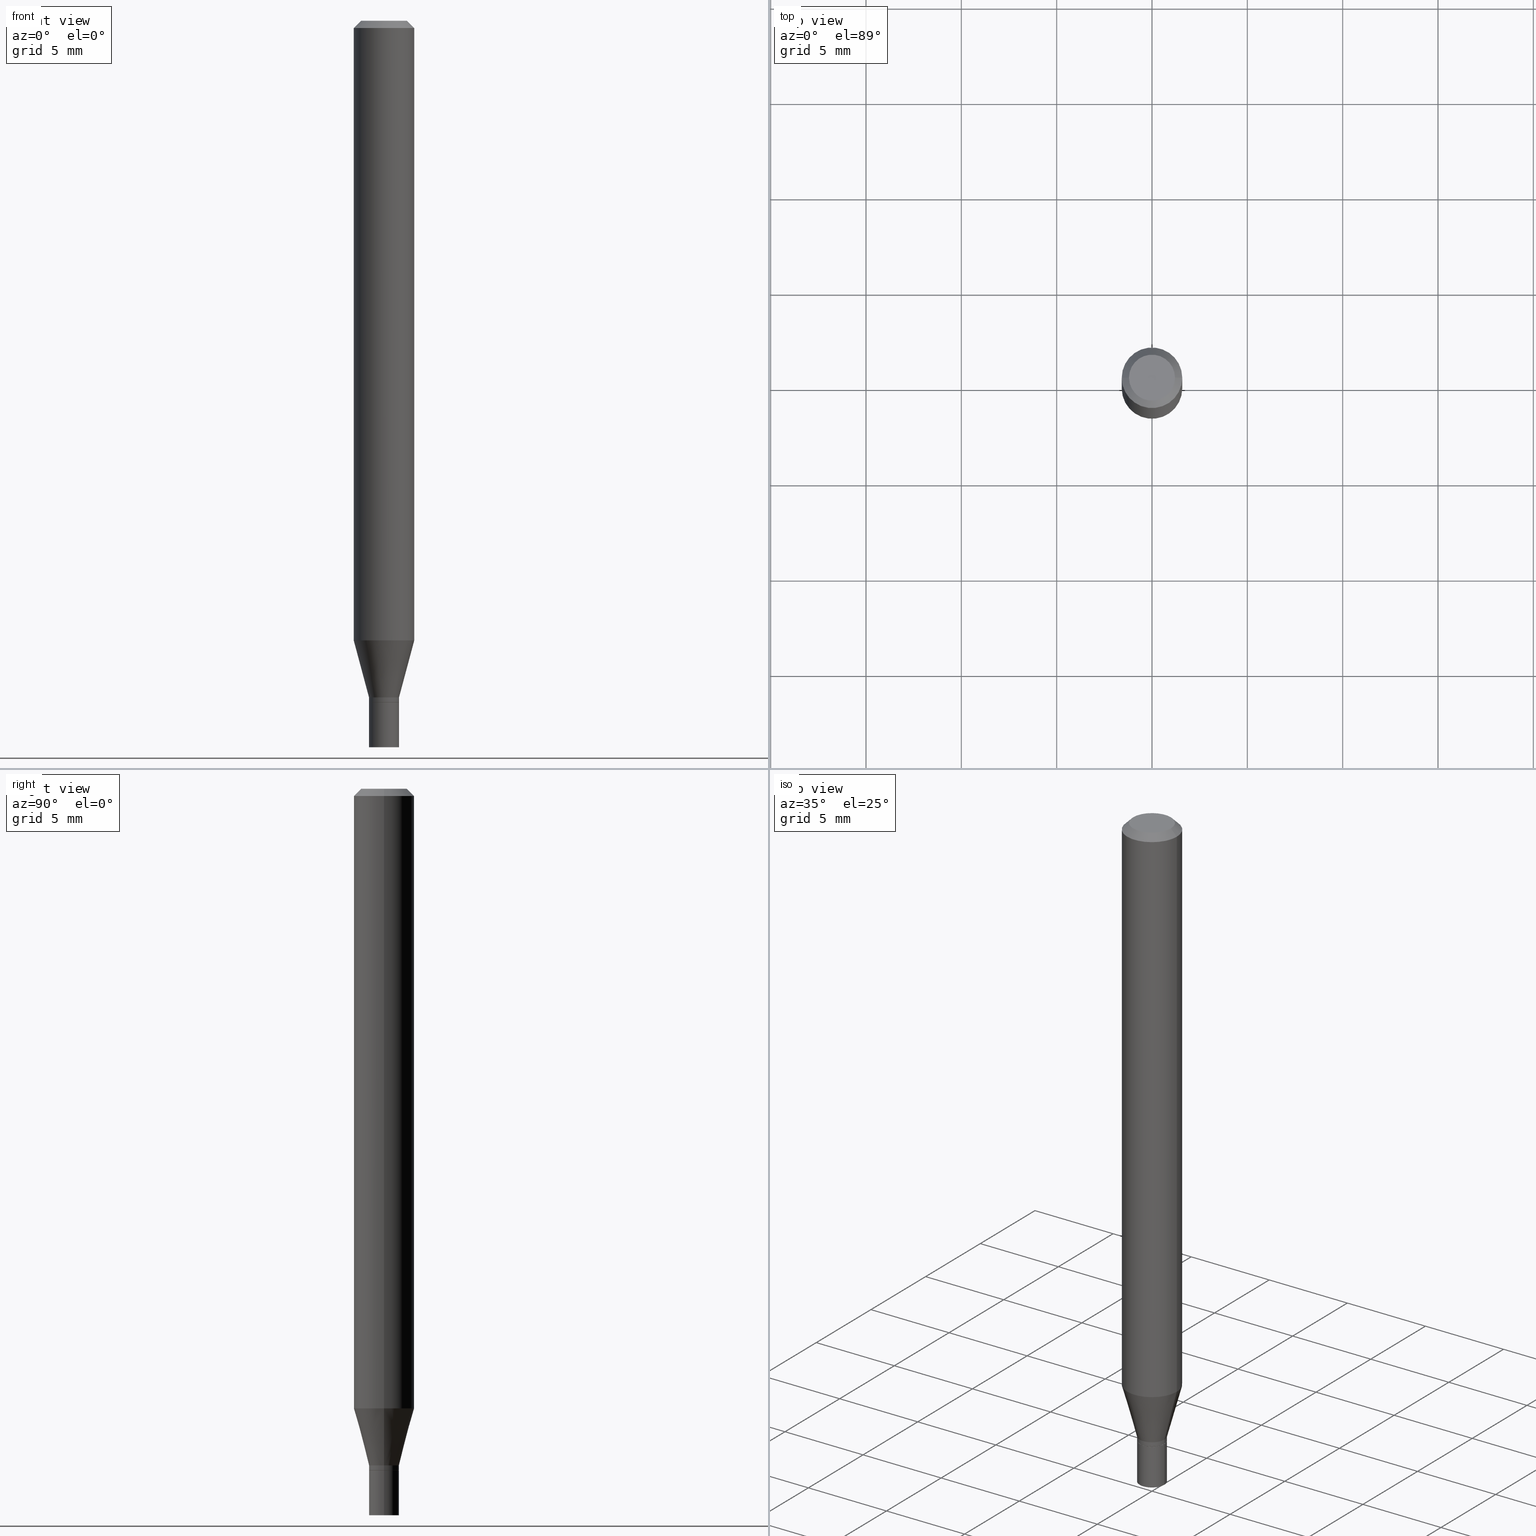
[diagram: canonical four-view strip — front | top / right | iso, engineering-drawing reading convention]
A machine part, canonical four-view strip (front | top / right | iso — engineering-drawing reading convention). The complete STEP part file that produces these views, byte-faithful:
ISO-10303-21;
HEADER;
FILE_DESCRIPTION (( 'STEP AP203' ),
    '1' );
FILE_NAME ('02388.STEP',
    '2024-03-18T20:21:01',
    ( '' ),
    ( '' ),
    'SwSTEP 2.0',
    'SolidWorks 2023',
    '' );
FILE_SCHEMA (( 'CONFIG_CONTROL_DESIGN' ));
ENDSEC;

DATA;
#1 = ORIENTED_EDGE ( 'NONE', *, *, #217, .F. ) ;
#2 = ORIENTED_EDGE ( 'NONE', *, *, #118, .F. ) ;
#3 = CARTESIAN_POINT ( 'NONE',  ( 0.03049999999999999586, -5.125494605421736426E-15, -1.407000000000000028 ) ) ;
#4 = ADVANCED_FACE ( 'NONE', ( #372 ), #47, .T. ) ;
#5 = ORIENTED_EDGE ( 'NONE', *, *, #41, .F. ) ;
#6 = CARTESIAN_POINT ( 'NONE',  ( 3.668203209277704895E-29, -5.237222008264718177E-15, -1.500000000000000222 ) ) ;
#7 = AXIS2_PLACEMENT_3D ( 'NONE', #276, #84, #236 ) ;
#8 = CARTESIAN_POINT ( 'NONE',  ( 3.128831586500892254E-29, -4.467142279231276182E-15, -1.279440399561580399 ) ) ;
#9 = VERTEX_POINT ( 'NONE', #192 ) ;
#10 = ORIENTED_EDGE ( 'NONE', *, *, #185, .F. ) ;
#11 = CARTESIAN_POINT ( 'NONE',  ( -6.039856226162565090E-45, 8.623313963198306787E-31, 2.469815280770059421E-16 ) ) ;
#12 = VECTOR ( 'NONE', #176, 39.37007874015748143 ) ;
#13 = LINE ( 'NONE', #117, #78 ) ;
#14 = EDGE_CURVE ( 'NONE', #302, #401, #155, .T. ) ;
#15 = VECTOR ( 'NONE', #28, 39.37007874015748143 ) ;
#16 = VECTOR ( 'NONE', #179, 39.37007874015747433 ) ;
#17 = ADVANCED_FACE ( 'NONE', ( #320 ), #188, .T. ) ;
#18 = FACE_OUTER_BOUND ( 'NONE', #344, .T. ) ;
#19 = PRODUCT_DEFINITION_SHAPE ( 'NONE', 'NONE',  #371 ) ;
#20 = DIRECTION ( 'NONE',  ( 1.000000000000000000, 0.000000000000000000, 0.000000000000000000 ) ) ;
#21 = VERTEX_POINT ( 'NONE', #229 ) ;
#22 = ORIENTED_EDGE ( 'NONE', *, *, #419, .F. ) ;
#23 = CONICAL_SURFACE ( 'NONE', #274, 0.03099999999999991651, 0.2617993877991500740 ) ;
#24 = DATE_AND_TIME ( #388, #452 ) ;
#25 = DIRECTION ( 'NONE',  ( 1.000000000000000000, -6.982962677686266711E-15, 4.876176775795935232E-29 ) ) ;
#26 = LINE ( 'NONE', #235, #67 ) ;
#27 = CARTESIAN_POINT ( 'NONE',  ( 3.416319922240636557E-29, -4.877599430363875031E-15, -1.397000000000000242 ) ) ;
#28 = DIRECTION ( 'NONE',  ( 0.7071067811865656694, -2.468850131082446387E-15, 0.7071067811865294761 ) ) ;
#29 = CARTESIAN_POINT ( 'NONE',  ( 0.03099999999999999978, -2.164718430082742572E-16, 1.511614800496739984E-30 ) ) ;
#30 = VERTEX_POINT ( 'NONE', #409 ) ;
#31 = AXIS2_PLACEMENT_3D ( 'NONE', #11, #328, #201 ) ;
#32 = FACE_OUTER_BOUND ( 'NONE', #110, .T. ) ;
#33 = CARTESIAN_POINT ( 'NONE',  ( -0.03099999999999999978, -4.854599877922879992E-15, -1.500000000000000222 ) ) ;
#34 = ORIENTED_EDGE ( 'NONE', *, *, #118, .T. ) ;
#35 = DIRECTION ( 'NONE',  ( -0.2588190451025213501, 5.211531920934551042E-15, 0.9659258262890682012 ) ) ;
#36 = EDGE_LOOP ( 'NONE', ( #174, #256, #266, #311 ) ) ;
#37 = LINE ( 'NONE', #102, #450 ) ;
#38 = EDGE_LOOP ( 'NONE', ( #271, #10 ) ) ;
#39 = CIRCLE ( 'NONE', #183, 0.03049999999999999586 ) ;
#40 = LOCAL_TIME ( 16, 21, 1.000000000000000000, #354 ) ;
#41 = EDGE_CURVE ( 'NONE', #107, #369, #53, .T. ) ;
#42 = ORIENTED_EDGE ( 'NONE', *, *, #86, .F. ) ;
#43 = DIRECTION ( 'NONE',  ( 2.438088387897960049E-29, -3.491481338843145188E-15, -1.000000000000000000 ) ) ;
#44 = ORIENTED_EDGE ( 'NONE', *, *, #146, .F. ) ;
#45 = DIRECTION ( 'NONE',  ( -2.445468806185136597E-29, 3.491481338843145583E-15, 1.000000000000000000 ) ) ;
#46 = CARTESIAN_POINT ( 'NONE',  ( 3.440774610302487541E-29, -4.912514243752305891E-15, -1.407000000000000028 ) ) ;
#47 = CONICAL_SURFACE ( 'NONE', #231, 0.03049999999999999586, 0.7853981633974739252 ) ;
#48 = CIRCLE ( 'NONE', #313, 0.03099999999999991651 ) ;
#49 = ADVANCED_FACE ( 'NONE', ( #61 ), #135, .T. ) ;
#50 = DIRECTION ( 'NONE',  ( -2.445468806185136597E-29, 3.491481338843145583E-15, 1.000000000000000000 ) ) ;
#51 = SECURITY_CLASSIFICATION_LEVEL ( 'unclassified' ) ;
#52 = APPROVAL ( #54, 'UNSPECIFIED' ) ;
#53 = CIRCLE ( 'NONE', #240, 0.06250000000000000000 ) ;
#54 = APPROVAL_STATUS ( 'not_yet_approved' ) ;
#55 = APPROVAL_ROLE ( '' ) ;
#56 = CIRCLE ( 'NONE', #181, 0.03049999999999999586 ) ;
#57 = DIRECTION ( 'NONE',  ( -2.445468806185136597E-29, 3.491481338843145583E-15, 1.000000000000000000 ) ) ;
#58 = PERSON ( 'UNSPECIFIED', 'UNSPECIFIED', 'UNSPECIFIED', ('UNSPECIFIED'), ('UNSPECIFIED'), ('UNSPECIFIED') ) ;
#59 = CC_DESIGN_APPROVAL ( #52, ( #371 ) ) ;
#60 = CARTESIAN_POINT ( 'NONE',  ( 3.668203209277704895E-29, -5.237222008264718177E-15, -1.500000000000000222 ) ) ;
#61 = FACE_OUTER_BOUND ( 'NONE', #368, .T. ) ;
#62 = VERTEX_POINT ( 'NONE', #366 ) ;
#63 = DIRECTION ( 'NONE',  ( 1.000000000000000000, -6.982962677686267499E-15, 4.852736867747366768E-29 ) ) ;
#64 = DIRECTION ( 'NONE',  ( -2.445468806185136597E-29, 3.491481338843145583E-15, 1.000000000000000000 ) ) ;
#65 = EDGE_CURVE ( 'NONE', #73, #401, #435, .T. ) ;
#66 = EDGE_LOOP ( 'NONE', ( #254, #139, #220, #437 ) ) ;
#67 = VECTOR ( 'NONE', #157, 39.37007874015748143 ) ;
#68 = ORIENTED_EDGE ( 'NONE', *, *, #41, .T. ) ;
#69 = ORIENTED_EDGE ( 'NONE', *, *, #338, .F. ) ;
#70 = FACE_OUTER_BOUND ( 'NONE', #332, .T. ) ;
#71 = CARTESIAN_POINT ( 'NONE',  ( 3.668203209277705088E-31, -5.237222008264718399E-17, -0.01499999999999999944 ) ) ;
#72 = CARTESIAN_POINT ( 'NONE',  ( 3.440774610302487541E-29, -4.912514243752305891E-15, -1.407000000000000028 ) ) ;
#73 = VERTEX_POINT ( 'NONE', #427 ) ;
#74 = CARTESIAN_POINT ( 'NONE',  ( 0.000000000000000000, 0.000000000000000000, 0.000000000000000000 ) ) ;
#75 = ADVANCED_FACE ( 'NONE', ( #392 ), #408, .T. ) ;
#76 = EDGE_LOOP ( 'NONE', ( #407, #137, #68, #373 ) ) ;
#77 = SECURITY_CLASSIFICATION ( '', '', #51 ) ;
#78 = VECTOR ( 'NONE', #411, 39.37007874015748143 ) ;
#79 = EDGE_LOOP ( 'NONE', ( #69, #22 ) ) ;
#80 = DIRECTION ( 'NONE',  ( -2.445468806185136597E-29, 3.491481338843145583E-15, 1.000000000000000000 ) ) ;
#81 = AXIS2_PLACEMENT_3D ( 'NONE', #74, #359, #352 ) ;
#82 = AXIS2_PLACEMENT_3D ( 'NONE', #211, #329, #252 ) ;
#83 =( GEOMETRIC_REPRESENTATION_CONTEXT ( 3 ) GLOBAL_UNCERTAINTY_ASSIGNED_CONTEXT ( ( #377 ) ) GLOBAL_UNIT_ASSIGNED_CONTEXT ( ( #272, #349, #428 ) ) REPRESENTATION_CONTEXT ( 'NONE', 'WORKASPACE' ) );
#84 = DIRECTION ( 'NONE',  ( -2.445468806185136597E-29, 3.491481338843145583E-15, 1.000000000000000000 ) ) ;
#85 = FACE_OUTER_BOUND ( 'NONE', #290, .T. ) ;
#86 = EDGE_CURVE ( 'NONE', #30, #62, #308, .T. ) ;
#87 = LINE ( 'NONE', #131, #380 ) ;
#88 = PERSON_AND_ORGANIZATION ( #58, #163 ) ;
#89 = CC_DESIGN_PERSON_AND_ORGANIZATION_ASSIGNMENT ( #382, #92, ( #161 ) ) ;
#90 = ORIENTED_EDGE ( 'NONE', *, *, #146, .T. ) ;
#91 = PERSON_AND_ORGANIZATION_ROLE ( 'design_supplier' ) ;
#92 = PERSON_AND_ORGANIZATION_ROLE ( 'design_owner' ) ;
#93 = CARTESIAN_POINT ( 'NONE',  ( -0.03099999999999999978, -4.854599877922879992E-15, -1.407000000000000028 ) ) ;
#94 = DATE_TIME_ROLE ( 'creation_date' ) ;
#95 = PLANE ( 'NONE',  #200 ) ;
#96 = DIRECTION ( 'NONE',  ( -2.445468806185136597E-29, 3.491481338843145583E-15, 1.000000000000000000 ) ) ;
#97 = DATE_TIME_ROLE ( 'classification_date' ) ;
#98 = DIRECTION ( 'NONE',  ( 2.445468806185136597E-29, -3.491481338843145583E-15, -1.000000000000000000 ) ) ;
#99 = CIRCLE ( 'NONE', #458, 0.03099999999999992345 ) ;
#100 = CIRCLE ( 'NONE', #345, 0.04749999999999999362 ) ;
#101 = DIRECTION ( 'NONE',  ( 1.000000000000000000, -6.982962677686270655E-15, 0.000000000000000000 ) ) ;
#102 = CARTESIAN_POINT ( 'NONE',  ( -0.03099999999999999978, 2.202682480856310560E-16, -1.524869877979020612E-30 ) ) ;
#103 = CARTESIAN_POINT ( 'NONE',  ( 3.440774610302487541E-29, -4.912514243752305891E-15, -1.407000000000000028 ) ) ;
#104 = DIRECTION ( 'NONE',  ( -2.445468806185136597E-29, 3.491481338843145583E-15, 1.000000000000000000 ) ) ;
#105 = LINE ( 'NONE', #170, #12 ) ;
#106 = EDGE_CURVE ( 'NONE', #62, #365, #105, .T. ) ;
#107 = VERTEX_POINT ( 'NONE', #221 ) ;
#108 = DIRECTION ( 'NONE',  ( -2.445468806185136597E-29, 3.491481338843145583E-15, 1.000000000000000000 ) ) ;
#109 = LINE ( 'NONE', #400, #351 ) ;
#110 = EDGE_LOOP ( 'NONE', ( #115, #222 ) ) ;
#111 = DIRECTION ( 'NONE',  ( -2.445468806185136597E-29, 3.491481338843145583E-15, 1.000000000000000000 ) ) ;
#112 = ORIENTED_EDGE ( 'NONE', *, *, #419, .T. ) ;
#113 = ORIENTED_EDGE ( 'NONE', *, *, #106, .T. ) ;
#114 = ADVANCED_FACE ( 'NONE', ( #32 ), #337, .F. ) ;
#115 = ORIENTED_EDGE ( 'NONE', *, *, #253, .T. ) ;
#116 = DIRECTION ( 'NONE',  ( -1.000000000000000000, 6.982962677686265922E-15, -4.876176775795935793E-29 ) ) ;
#117 = CARTESIAN_POINT ( 'NONE',  ( -0.03099999999999992345, 2.202682480856305137E-16, -1.524869877979016933E-30 ) ) ;
#118 = EDGE_CURVE ( 'NONE', #302, #107, #260, .T. ) ;
#119 = APPROVAL_PERSON_ORGANIZATION ( #426, #241, #245 ) ;
#120 = DESIGN_CONTEXT ( 'detailed design', #462, 'design' ) ;
#121 = CARTESIAN_POINT ( 'NONE',  ( 3.439551875899394740E-29, -4.910768503082885176E-15, -1.406500000000000083 ) ) ;
#122 = DIRECTION ( 'NONE',  ( -2.445468806185136597E-29, 3.491481338843145583E-15, 1.000000000000000000 ) ) ;
#123 = FACE_OUTER_BOUND ( 'NONE', #79, .T. ) ;
#124 = FACE_OUTER_BOUND ( 'NONE', #36, .T. ) ;
#125 = ORIENTED_EDGE ( 'NONE', *, *, #364, .F. ) ;
#126 = CARTESIAN_POINT ( 'NONE',  ( 3.440774610302487541E-29, -4.912514243752305891E-15, -1.407000000000000028 ) ) ;
#127 = EDGE_CURVE ( 'NONE', #21, #335, #457, .T. ) ;
#128 = DIRECTION ( 'NONE',  ( -2.445468806185136877E-29, 3.491481338843145188E-15, 1.000000000000000000 ) ) ;
#129 = MECHANICAL_CONTEXT ( 'NONE', #348, 'mechanical' ) ;
#130 = CALENDAR_DATE ( 2024, 18, 3 ) ;
#131 = CARTESIAN_POINT ( 'NONE',  ( -0.06250000000000000000, 4.440892098500626162E-16, -3.074334431409316114E-30 ) ) ;
#132 = DIRECTION ( 'NONE',  ( -2.445468806185136877E-29, 3.491481338843145188E-15, 1.000000000000000000 ) ) ;
#133 = LINE ( 'NONE', #29, #451 ) ;
#134 = CIRCLE ( 'NONE', #301, 0.03099999999999999978 ) ;
#135 = CONICAL_SURFACE ( 'NONE', #421, 0.06250000000000000000, 0.7853981633974401744 ) ;
#136 = EDGE_CURVE ( 'NONE', #141, #291, #100, .T. ) ;
#137 = ORIENTED_EDGE ( 'NONE', *, *, #446, .T. ) ;
#138 = DIRECTION ( 'NONE',  ( 1.000000000000000000, -6.982962677686255667E-15, 0.000000000000000000 ) ) ;
#139 = ORIENTED_EDGE ( 'NONE', *, *, #324, .T. ) ;
#140 = CARTESIAN_POINT ( 'NONE',  ( 3.439551875899394740E-29, -4.910768503082885176E-15, -1.406500000000000083 ) ) ;
#141 = VERTEX_POINT ( 'NONE', #214 ) ;
#142 = DIRECTION ( 'NONE',  ( -2.445468806185136597E-29, 3.491481338843145583E-15, 1.000000000000000000 ) ) ;
#143 = CONICAL_SURFACE ( 'NONE', #207, 0.03099999999999991651, 0.2617993877991500740 ) ;
#144 = CIRCLE ( 'NONE', #343, 0.03099999999999991651 ) ;
#145 = ORIENTED_EDGE ( 'NONE', *, *, #314, .T. ) ;
#146 = EDGE_CURVE ( 'NONE', #297, #9, #432, .T. ) ;
#147 = DIRECTION ( 'NONE',  ( 1.000000000000000000, -6.982962677686254089E-15, 0.000000000000000000 ) ) ;
#148 = ORIENTED_EDGE ( 'NONE', *, *, #324, .F. ) ;
#149 = LINE ( 'NONE', #3, #15 ) ;
#150 = ORIENTED_EDGE ( 'NONE', *, *, #376, .T. ) ;
#151 = ADVANCED_FACE ( 'NONE', ( #70 ), #143, .T. ) ;
#152 = CARTESIAN_POINT ( 'NONE',  ( 3.668203209277705088E-31, -5.237222008264718399E-17, -0.01499999999999999944 ) ) ;
#153 = PRODUCT_RELATED_PRODUCT_CATEGORY ( 'detail', '', ( #161 ) ) ;
#154 = CARTESIAN_POINT ( 'NONE',  ( 0.000000000000000000, 0.000000000000000000, 0.000000000000000000 ) ) ;
#155 = CIRCLE ( 'NONE', #322, 0.06250000000000000000 ) ;
#156 = CARTESIAN_POINT ( 'NONE',  ( 0.06250000000000000000, -4.811533449433679005E-16, -0.01499999999999999944 ) ) ;
#157 = DIRECTION ( 'NONE',  ( -0.7071067811865656694, 7.493145998870420424E-15, 0.7071067811865294761 ) ) ;
#158 = DIRECTION ( 'NONE',  ( -2.438088387897960049E-29, 3.491481338843145188E-15, 1.000000000000000000 ) ) ;
#159 = EDGE_LOOP ( 'NONE', ( #215, #395, #5, #2 ) ) ;
#160 = APPROVAL_DATE_TIME ( #384, #241 ) ;
#161 = PRODUCT ( '02388', '02388', '', ( #129 ) ) ;
#162 = APPLICATION_PROTOCOL_DEFINITION ( 'international standard', 'config_control_design', 1994, #348 ) ;
#163 = ORGANIZATION ( 'UNSPECIFIED', 'UNSPECIFIED', '' ) ;
#164 = EDGE_CURVE ( 'NONE', #365, #302, #216, .T. ) ;
#165 = VECTOR ( 'NONE', #35, 39.37007874015747433 ) ;
#166 = DIRECTION ( 'NONE',  ( 1.000000000000000000, -6.982962677686265922E-15, 4.876176775795935793E-29 ) ) ;
#167 = APPROVAL_ROLE ( '' ) ;
#168 = CYLINDRICAL_SURFACE ( 'NONE', #361, 0.03099999999999992345 ) ;
#169 = DIRECTION ( 'NONE',  ( -2.445468806185136597E-29, 3.491481338843145583E-15, 1.000000000000000000 ) ) ;
#170 = CARTESIAN_POINT ( 'NONE',  ( 0.03099999999999992345, -2.164718430082737148E-16, 1.511614800496736305E-30 ) ) ;
#171 = CARTESIAN_POINT ( 'NONE',  ( 3.440774610302487541E-29, -4.912514243752305891E-15, -1.407000000000000028 ) ) ;
#172 = EDGE_LOOP ( 'NONE', ( #299, #212, #173, #305 ) ) ;
#173 = ORIENTED_EDGE ( 'NONE', *, *, #357, .F. ) ;
#174 = ORIENTED_EDGE ( 'NONE', *, *, #338, .T. ) ;
#175 = CARTESIAN_POINT ( 'NONE',  ( 0.03099999999999991651, -5.094071273372148573E-15, -1.397000000000000242 ) ) ;
#176 = DIRECTION ( 'NONE',  ( -2.445468806185136877E-29, 3.491481338843145188E-15, 1.000000000000000000 ) ) ;
#177 = ORIENTED_EDGE ( 'NONE', *, *, #86, .T. ) ;
#178 = ORIENTED_EDGE ( 'NONE', *, *, #257, .F. ) ;
#179 = DIRECTION ( 'NONE',  ( 0.2588190451025213501, 1.565188264969621968E-15, 0.9659258262890682012 ) ) ;
#180 = CARTESIAN_POINT ( 'NONE',  ( 0.06250000000000000000, -4.364351673553916694E-16, 3.047610484872459871E-30 ) ) ;
#181 = AXIS2_PLACEMENT_3D ( 'NONE', #103, #383, #394 ) ;
#182 = ORIENTED_EDGE ( 'NONE', *, *, #164, .T. ) ;
#183 = AXIS2_PLACEMENT_3D ( 'NONE', #72, #327, #413 ) ;
#184 = ORIENTED_EDGE ( 'NONE', *, *, #393, .T. ) ;
#185 = EDGE_CURVE ( 'NONE', #335, #21, #387, .T. ) ;
#186 = ORIENTED_EDGE ( 'NONE', *, *, #364, .T. ) ;
#187 = DIRECTION ( 'NONE',  ( 1.000000000000000000, -6.982962677686262766E-15, 0.000000000000000000 ) ) ;
#188 = CYLINDRICAL_SURFACE ( 'NONE', #466, 0.03099999999999992345 ) ;
#189 = AXIS2_PLACEMENT_3D ( 'NONE', #287, #439, #398 ) ;
#190 = EDGE_CURVE ( 'NONE', #30, #73, #13, .T. ) ;
#191 = AXIS2_PLACEMENT_3D ( 'NONE', #140, #169, #138 ) ;
#192 = CARTESIAN_POINT ( 'NONE',  ( 0.03099999999999999978, -5.128986086760580222E-15, -1.407000000000000028 ) ) ;
#193 = DIRECTION ( 'NONE',  ( 1.000000000000000000, -6.982962677686270655E-15, 0.000000000000000000 ) ) ;
#194 = FACE_OUTER_BOUND ( 'NONE', #430, .T. ) ;
#195 = APPROVAL ( #461, 'UNSPECIFIED' ) ;
#196 = APPROVAL_DATE_TIME ( #459, #52 ) ;
#197 = DIRECTION ( 'NONE',  ( -2.445468806185136597E-29, 3.491481338843145583E-15, 1.000000000000000000 ) ) ;
#198 = FACE_OUTER_BOUND ( 'NONE', #355, .T. ) ;
#199 = DIRECTION ( 'NONE',  ( 0.000000000000000000, 0.000000000000000000, 1.000000000000000000 ) ) ;
#200 = AXIS2_PLACEMENT_3D ( 'NONE', #246, #43, #116 ) ;
#201 = DIRECTION ( 'NONE',  ( 1.000000000000000000, -6.982962677686267499E-15, 4.852736867747366768E-29 ) ) ;
#202 = PERSON_AND_ORGANIZATION ( #58, #163 ) ;
#203 = COORDINATED_UNIVERSAL_TIME_OFFSET ( 5, 0, .BEHIND. ) ;
#204 = CARTESIAN_POINT ( 'NONE',  ( 3.576687321579069994E-29, -5.368277968210015545E-15, -1.500000000000000222 ) ) ;
#205 = CALENDAR_DATE ( 2024, 18, 3 ) ;
#206 = DIRECTION ( 'NONE',  ( 1.000000000000000000, -6.982962677686266711E-15, 4.876176775795935793E-29 ) ) ;
#207 = AXIS2_PLACEMENT_3D ( 'NONE', #438, #108, #255 ) ;
#208 = AXIS2_PLACEMENT_3D ( 'NONE', #243, #199, #20 ) ;
#209 = DIRECTION ( 'NONE',  ( -2.445468806185136597E-29, 3.491481338843145583E-15, 1.000000000000000000 ) ) ;
#210 = CARTESIAN_POINT ( 'NONE',  ( -0.06250000000000000000, -1.815668039806898817E-15, -0.01499999999999999944 ) ) ;
#211 = CARTESIAN_POINT ( 'NONE',  ( 3.316907271900976096E-16, 0.04749999999999999362, -4.235459955654642541E-17 ) ) ;
#212 = ORIENTED_EDGE ( 'NONE', *, *, #190, .T. ) ;
#213 = CYLINDRICAL_SURFACE ( 'NONE', #412, 0.06250000000000000000 ) ;
#214 = CARTESIAN_POINT ( 'NONE',  ( 0.04749999999999999362, -4.035134999187574186E-16, 2.469815280770085059E-16 ) ) ;
#215 = ORIENTED_EDGE ( 'NONE', *, *, #14, .T. ) ;
#216 = LINE ( 'NONE', #175, #16 ) ;
#217 = EDGE_CURVE ( 'NONE', #396, #30, #26, .T. ) ;
#218 = ORIENTED_EDGE ( 'NONE', *, *, #406, .F. ) ;
#219 = DIRECTION ( 'NONE',  ( -2.445468806185136597E-29, 3.491481338843145583E-15, 1.000000000000000000 ) ) ;
#220 = ORIENTED_EDGE ( 'NONE', *, *, #402, .F. ) ;
#221 = CARTESIAN_POINT ( 'NONE',  ( 0.06250000000000000000, -4.888073874380388472E-16, -0.01499999999999999944 ) ) ;
#222 = ORIENTED_EDGE ( 'NONE', *, *, #136, .T. ) ;
#223 = CC_DESIGN_APPROVAL ( #195, ( #77 ) ) ;
#224 = ORIENTED_EDGE ( 'NONE', *, *, #357, .T. ) ;
#225 = FACE_OUTER_BOUND ( 'NONE', #159, .T. ) ;
#226 = EDGE_CURVE ( 'NONE', #21, #9, #133, .T. ) ;
#227 = CARTESIAN_POINT ( 'NONE',  ( 0.03099999999999991651, -5.094071273372148573E-15, -1.397000000000000242 ) ) ;
#228 = LOCAL_TIME ( 16, 21, 1.000000000000000000, #278 ) ;
#229 = CARTESIAN_POINT ( 'NONE',  ( 0.03099999999999999978, -5.453693851272993297E-15, -1.500000000000000222 ) ) ;
#230 = ADVANCED_FACE ( 'NONE', ( #233 ), #275, .F. ) ;
#231 = AXIS2_PLACEMENT_3D ( 'NONE', #46, #261, #147 ) ;
#232 = AXIS2_PLACEMENT_3D ( 'NONE', #270, #57, #25 ) ;
#233 = FACE_OUTER_BOUND ( 'NONE', #38, .T. ) ;
#234 = ADVANCED_FACE ( 'NONE', ( #198 ), #95, .F. ) ;
#235 = CARTESIAN_POINT ( 'NONE',  ( -0.03049999999999999586, -4.695798709345474748E-15, -1.407000000000000028 ) ) ;
#236 = DIRECTION ( 'NONE',  ( 1.000000000000000000, -6.982962677686266711E-15, 4.876176775795935793E-29 ) ) ;
#237 = APPROVAL_STATUS ( 'not_yet_approved' ) ;
#238 = CARTESIAN_POINT ( 'NONE',  ( -0.03049999999999999586, -4.693149482171365124E-15, -1.407000000000000028 ) ) ;
#239 = PERSON_AND_ORGANIZATION ( #58, #163 ) ;
#240 = AXIS2_PLACEMENT_3D ( 'NONE', #152, #209, #464 ) ;
#241 = APPROVAL ( #237, 'UNSPECIFIED' ) ;
#242 = DIRECTION ( 'NONE',  ( -2.438088387897960049E-29, 3.491481338843145188E-15, 1.000000000000000000 ) ) ;
#243 = CARTESIAN_POINT ( 'NONE',  ( 0.000000000000000000, 0.000000000000000000, 0.000000000000000000 ) ) ;
#244 = DIRECTION ( 'NONE',  ( -2.445468806185136597E-29, 3.491481338843145583E-15, 1.000000000000000000 ) ) ;
#245 = APPROVAL_ROLE ( '' ) ;
#246 = CARTESIAN_POINT ( 'NONE',  ( 2.164718430083086219E-16, 0.03099999999999508704, -1.407000000000000028 ) ) ;
#247 = DATE_AND_TIME ( #205, #442 ) ;
#248 = AXIS2_PLACEMENT_3D ( 'NONE', #269, #122, #415 ) ;
#249 = APPROVAL_PERSON_ORGANIZATION ( #455, #195, #167 ) ;
#250 = CARTESIAN_POINT ( 'NONE',  ( -6.039856226162565090E-45, 8.623313963198306787E-31, 2.469815280770059421E-16 ) ) ;
#251 = DIMENSIONAL_EXPONENTS ( 1.000000000000000000, 0.000000000000000000, 0.000000000000000000, 0.000000000000000000, 0.000000000000000000, 0.000000000000000000, 0.000000000000000000 ) ;
#252 = DIRECTION ( 'NONE',  ( -1.000000000000000000, 6.982962677686265922E-15, -4.876176775795935793E-29 ) ) ;
#253 = EDGE_CURVE ( 'NONE', #291, #141, #268, .T. ) ;
#254 = ORIENTED_EDGE ( 'NONE', *, *, #127, .T. ) ;
#255 = DIRECTION ( 'NONE',  ( 1.000000000000000000, -6.982962677686257244E-15, 0.000000000000000000 ) ) ;
#256 = ORIENTED_EDGE ( 'NONE', *, *, #217, .T. ) ;
#257 = EDGE_CURVE ( 'NONE', #401, #369, #87, .T. ) ;
#258 = ORIENTED_EDGE ( 'NONE', *, *, #65, .F. ) ;
#259 = PRODUCT_DEFINITION_FORMATION_WITH_SPECIFIED_SOURCE ( 'ANY', '', #161, .NOT_KNOWN. ) ;
#260 = LINE ( 'NONE', #180, #281 ) ;
#261 = DIRECTION ( 'NONE',  ( -2.445468806185136597E-29, 3.491481338843145583E-15, 1.000000000000000000 ) ) ;
#262 = DIRECTION ( 'NONE',  ( 1.000000000000000000, -6.982962677686257244E-15, 0.000000000000000000 ) ) ;
#263 = ORIENTED_EDGE ( 'NONE', *, *, #446, .F. ) ;
#264 = ADVANCED_BREP_SHAPE_REPRESENTATION ( '02388', ( #307, #303, #208 ), #83 ) ;
#265 = DIRECTION ( 'NONE',  ( -2.445468806185136597E-29, 3.491481338843145583E-15, 1.000000000000000000 ) ) ;
#266 = ORIENTED_EDGE ( 'NONE', *, *, #425, .F. ) ;
#267 = CIRCLE ( 'NONE', #386, 0.06250000000000000000 ) ;
#268 = CIRCLE ( 'NONE', #31, 0.04749999999999999362 ) ;
#269 = CARTESIAN_POINT ( 'NONE',  ( 3.440774610302487541E-29, -4.912514243752305891E-15, -1.407000000000000028 ) ) ;
#270 = CARTESIAN_POINT ( 'NONE',  ( 0.000000000000000000, 0.000000000000000000, 0.000000000000000000 ) ) ;
#271 = ORIENTED_EDGE ( 'NONE', *, *, #127, .F. ) ;
#272 =( CONVERSION_BASED_UNIT ( 'INCH', #449 ) LENGTH_UNIT ( ) NAMED_UNIT ( #251 ) );
#273 = CARTESIAN_POINT ( 'NONE',  ( 0.000000000000000000, 0.000000000000000000, 0.000000000000000000 ) ) ;
#274 = AXIS2_PLACEMENT_3D ( 'NONE', #356, #244, #262 ) ;
#275 = PLANE ( 'NONE',  #353 ) ;
#276 = CARTESIAN_POINT ( 'NONE',  ( 0.000000000000000000, 0.000000000000000000, 0.000000000000000000 ) ) ;
#277 = APPLICATION_PROTOCOL_DEFINITION ( 'international standard', 'config_control_design', 1994, #462 ) ;
#278 = COORDINATED_UNIVERSAL_TIME_OFFSET ( 5, 0, .BEHIND. ) ;
#279 = ORIENTED_EDGE ( 'NONE', *, *, #14, .F. ) ;
#280 = PERSON_AND_ORGANIZATION ( #58, #163 ) ;
#281 = VECTOR ( 'NONE', #132, 39.37007874015748143 ) ;
#282 = PERSON_AND_ORGANIZATION_ROLE ( 'creator' ) ;
#283 = CC_DESIGN_PERSON_AND_ORGANIZATION_ASSIGNMENT ( #280, #91, ( #259 ) ) ;
#284 = SHAPE_DEFINITION_REPRESENTATION ( #19, #264 ) ;
#285 = ADVANCED_FACE ( 'NONE', ( #18 ), #23, .T. ) ;
#286 = LOCAL_TIME ( 16, 21, 1.000000000000000000, #323 ) ;
#287 = CARTESIAN_POINT ( 'NONE',  ( 3.668203209277705088E-31, -5.237222008264718399E-17, -0.01499999999999999944 ) ) ;
#288 = AXIS2_PLACEMENT_3D ( 'NONE', #6, #142, #193 ) ;
#289 = DIRECTION ( 'NONE',  ( -1.000000000000000000, 6.982962677686266711E-15, 0.000000000000000000 ) ) ;
#290 = EDGE_LOOP ( 'NONE', ( #178, #184, #34, #218 ) ) ;
#291 = VERTEX_POINT ( 'NONE', #331 ) ;
#292 = DIRECTION ( 'NONE',  ( 1.000000000000000000, -6.982962677686270655E-15, 0.000000000000000000 ) ) ;
#293 = CYLINDRICAL_SURFACE ( 'NONE', #232, 0.03099999999999999978 ) ;
#294 = CARTESIAN_POINT ( 'NONE',  ( 3.440774610302487541E-29, -4.912514243752305891E-15, -1.407000000000000028 ) ) ;
#295 = ADVANCED_FACE ( 'NONE', ( #124 ), #444, .T. ) ;
#296 = ORIENTED_EDGE ( 'NONE', *, *, #190, .F. ) ;
#297 = VERTEX_POINT ( 'NONE', #93 ) ;
#298 = CLOSED_SHELL ( 'NONE', ( #17, #295, #75, #431, #285, #151, #423, #49, #114, #389, #4, #341 ) ) ;
#299 = ORIENTED_EDGE ( 'NONE', *, *, #425, .T. ) ;
#300 = ADVANCED_FACE ( 'NONE', ( #194 ), #293, .T. ) ;
#301 = AXIS2_PLACEMENT_3D ( 'NONE', #171, #219, #362 ) ;
#302 = VERTEX_POINT ( 'NONE', #350 ) ;
#303 = MANIFOLD_SOLID_BREP ( 'Body-Move/Copy2[2]', #298 ) ;
#304 = DIRECTION ( 'NONE',  ( 1.000000000000000000, -6.982962677686265922E-15, 4.876176775795935793E-29 ) ) ;
#305 = ORIENTED_EDGE ( 'NONE', *, *, #106, .F. ) ;
#306 = FACE_OUTER_BOUND ( 'NONE', #404, .T. ) ;
#307 = MANIFOLD_SOLID_BREP ( 'Body-Move/Copy2[1]', #315 ) ;
#308 = CIRCLE ( 'NONE', #191, 0.03099999999999992345 ) ;
#309 = DIRECTION ( 'NONE',  ( 1.000000000000000000, -6.982962677686257244E-15, 0.000000000000000000 ) ) ;
#310 = DIRECTION ( 'NONE',  ( 1.000000000000000000, -6.982962677686255667E-15, 0.000000000000000000 ) ) ;
#311 = ORIENTED_EDGE ( 'NONE', *, *, #376, .F. ) ;
#312 = CARTESIAN_POINT ( 'NONE',  ( 3.416319922240636557E-29, -4.877599430363875031E-15, -1.397000000000000242 ) ) ;
#313 = AXIS2_PLACEMENT_3D ( 'NONE', #312, #80, #309 ) ;
#314 = EDGE_CURVE ( 'NONE', #291, #369, #109, .T. ) ;
#315 = CLOSED_SHELL ( 'NONE', ( #385, #230, #300, #234 ) ) ;
#316 = CC_DESIGN_SECURITY_CLASSIFICATION ( #77, ( #259 ) ) ;
#317 = PERSON_AND_ORGANIZATION_ROLE ( 'creator' ) ;
#318 = CARTESIAN_POINT ( 'NONE',  ( 0.03049999999999999586, -5.125494605421736426E-15, -1.407000000000000028 ) ) ;
#319 = DIRECTION ( 'NONE',  ( 0.7071067811865416886, -7.319954787623233957E-15, -0.7071067811865531239 ) ) ;
#320 = FACE_OUTER_BOUND ( 'NONE', #172, .T. ) ;
#321 = PERSON_AND_ORGANIZATION_ROLE ( 'classification_officer' ) ;
#322 = AXIS2_PLACEMENT_3D ( 'NONE', #346, #111, #379 ) ;
#323 = COORDINATED_UNIVERSAL_TIME_OFFSET ( 5, 0, .BEHIND. ) ;
#324 = EDGE_CURVE ( 'NONE', #335, #297, #37, .T. ) ;
#325 = ORIENTED_EDGE ( 'NONE', *, *, #164, .F. ) ;
#326 = APPROVAL_DATE_TIME ( #358, #195 ) ;
#327 = DIRECTION ( 'NONE',  ( -2.445468806185136597E-29, 3.491481338843145583E-15, 1.000000000000000000 ) ) ;
#328 = DIRECTION ( 'NONE',  ( -2.445468806185136597E-29, 3.491481338843145583E-15, 1.000000000000000000 ) ) ;
#329 = DIRECTION ( 'NONE',  ( 2.438088387897960049E-29, -3.491481338843145188E-15, -1.000000000000000000 ) ) ;
#330 = DIRECTION ( 'NONE',  ( -2.445468806185136877E-29, 3.491481338843145188E-15, 1.000000000000000000 ) ) ;
#331 = CARTESIAN_POINT ( 'NONE',  ( -0.04749999999999999362, 3.578768372314215436E-16, 2.469815280770035755E-16 ) ) ;
#332 = EDGE_LOOP ( 'NONE', ( #258, #186, #182, #342 ) ) ;
#333 = FACE_OUTER_BOUND ( 'NONE', #66, .T. ) ;
#334 = CC_DESIGN_DATE_AND_TIME_ASSIGNMENT ( #247, #94, ( #371 ) ) ;
#335 = VERTEX_POINT ( 'NONE', #33 ) ;
#336 = DIRECTION ( 'NONE',  ( -2.445468806185136597E-29, 3.491481338843145583E-15, 1.000000000000000000 ) ) ;
#337 = PLANE ( 'NONE',  #82 ) ;
#338 = EDGE_CURVE ( 'NONE', #441, #396, #56, .T. ) ;
#339 = EDGE_LOOP ( 'NONE', ( #1, #112, #150, #42 ) ) ;
#340 = CIRCLE ( 'NONE', #410, 0.06250000000000000000 ) ;
#341 = ADVANCED_FACE ( 'NONE', ( #306 ), #168, .T. ) ;
#342 = ORIENTED_EDGE ( 'NONE', *, *, #393, .F. ) ;
#343 = AXIS2_PLACEMENT_3D ( 'NONE', #27, #104, #347 ) ;
#344 = EDGE_LOOP ( 'NONE', ( #224, #420, #279, #325 ) ) ;
#345 = AXIS2_PLACEMENT_3D ( 'NONE', #250, #397, #63 ) ;
#346 = CARTESIAN_POINT ( 'NONE',  ( 3.128831586500892254E-29, -4.467142279231276182E-15, -1.279440399561580399 ) ) ;
#347 = DIRECTION ( 'NONE',  ( 1.000000000000000000, -6.982962677686257244E-15, 0.000000000000000000 ) ) ;
#348 = APPLICATION_CONTEXT ( 'configuration controlled 3d designs of mechanical parts and assemblies' ) ;
#349 =( NAMED_UNIT ( * ) PLANE_ANGLE_UNIT ( ) SI_UNIT ( $, .RADIAN. ) );
#350 = CARTESIAN_POINT ( 'NONE',  ( 0.06250000000000000000, -4.903577446586667063E-15, -1.279440399561580399 ) ) ;
#351 = VECTOR ( 'NONE', #445, 39.37007874015748854 ) ;
#352 = DIRECTION ( 'NONE',  ( 1.000000000000000000, -6.982962677686266711E-15, 4.876176775795935232E-29 ) ) ;
#353 = AXIS2_PLACEMENT_3D ( 'NONE', #204, #158, #166 ) ;
#354 = COORDINATED_UNIVERSAL_TIME_OFFSET ( 5, 0, .BEHIND. ) ;
#355 = EDGE_LOOP ( 'NONE', ( #370, #90 ) ) ;
#356 = CARTESIAN_POINT ( 'NONE',  ( 3.416319922240636557E-29, -4.877599430363875031E-15, -1.397000000000000242 ) ) ;
#357 = EDGE_CURVE ( 'NONE', #365, #73, #144, .T. ) ;
#358 = DATE_AND_TIME ( #130, #40 ) ;
#359 = DIRECTION ( 'NONE',  ( -2.445468806185136597E-29, 3.491481338843145583E-15, 1.000000000000000000 ) ) ;
#360 = PERSON_AND_ORGANIZATION ( #58, #163 ) ;
#361 = AXIS2_PLACEMENT_3D ( 'NONE', #154, #336, #381 ) ;
#362 = DIRECTION ( 'NONE',  ( 1.000000000000000000, -6.982962677686270655E-15, 0.000000000000000000 ) ) ;
#363 = CARTESIAN_POINT ( 'NONE',  ( -0.03099999999999991651, -4.657331182278244567E-15, -1.397000000000000242 ) ) ;
#364 = EDGE_CURVE ( 'NONE', #73, #365, #48, .T. ) ;
#365 = VERTEX_POINT ( 'NONE', #227 ) ;
#366 = CARTESIAN_POINT ( 'NONE',  ( 0.03099999999999992345, -5.127240346091157930E-15, -1.406500000000000083 ) ) ;
#367 = AXIS2_PLACEMENT_3D ( 'NONE', #60, #433, #101 ) ;
#368 = EDGE_LOOP ( 'NONE', ( #263, #416, #145, #399 ) ) ;
#369 = VERTEX_POINT ( 'NONE', #210 ) ;
#370 = ORIENTED_EDGE ( 'NONE', *, *, #402, .T. ) ;
#371 = PRODUCT_DEFINITION ( 'UNKNOWN', '', #259, #120 ) ;
#372 = FACE_OUTER_BOUND ( 'NONE', #339, .T. ) ;
#373 = ORIENTED_EDGE ( 'NONE', *, *, #314, .F. ) ;
#374 = VECTOR ( 'NONE', #319, 39.37007874015748854 ) ;
#375 = ORIENTED_EDGE ( 'NONE', *, *, #185, .T. ) ;
#376 = EDGE_CURVE ( 'NONE', #441, #62, #149, .T. ) ;
#377 = UNCERTAINTY_MEASURE_WITH_UNIT (LENGTH_MEASURE( 1.000000000000000082E-05 ), #272, 'distance_accuracy_value', 'NONE');
#378 = AXIS2_PLACEMENT_3D ( 'NONE', #126, #242, #304 ) ;
#379 = DIRECTION ( 'NONE',  ( 1.000000000000000000, -6.982962677686262766E-15, 0.000000000000000000 ) ) ;
#380 = VECTOR ( 'NONE', #128, 39.37007874015748143 ) ;
#381 = DIRECTION ( 'NONE',  ( 1.000000000000000000, -6.982962677686265922E-15, 4.876176775795935793E-29 ) ) ;
#382 = PERSON_AND_ORGANIZATION ( #58, #163 ) ;
#383 = DIRECTION ( 'NONE',  ( -2.445468806185136597E-29, 3.491481338843145583E-15, 1.000000000000000000 ) ) ;
#384 = DATE_AND_TIME ( #418, #228 ) ;
#385 = ADVANCED_FACE ( 'NONE', ( #333 ), #405, .T. ) ;
#386 = AXIS2_PLACEMENT_3D ( 'NONE', #8, #265, #187 ) ;
#387 = CIRCLE ( 'NONE', #288, 0.03099999999999999978 ) ;
#388 = CALENDAR_DATE ( 2024, 18, 3 ) ;
#389 = ADVANCED_FACE ( 'NONE', ( #123 ), #460, .F. ) ;
#390 = CC_DESIGN_APPROVAL ( #241, ( #259 ) ) ;
#391 = CARTESIAN_POINT ( 'NONE',  ( -0.06250000000000000000, -4.023053069381213566E-15, -1.279440399561580399 ) ) ;
#392 = FACE_OUTER_BOUND ( 'NONE', #76, .T. ) ;
#393 = EDGE_CURVE ( 'NONE', #401, #302, #267, .T. ) ;
#394 = DIRECTION ( 'NONE',  ( 1.000000000000000000, -6.982962677686254089E-15, 0.000000000000000000 ) ) ;
#395 = ORIENTED_EDGE ( 'NONE', *, *, #257, .T. ) ;
#396 = VERTEX_POINT ( 'NONE', #238 ) ;
#397 = DIRECTION ( 'NONE',  ( -2.445468806185136597E-29, 3.491481338843145583E-15, 1.000000000000000000 ) ) ;
#398 = DIRECTION ( 'NONE',  ( -1.000000000000000000, 6.982962677686266711E-15, 0.000000000000000000 ) ) ;
#399 = ORIENTED_EDGE ( 'NONE', *, *, #406, .T. ) ;
#400 = CARTESIAN_POINT ( 'NONE',  ( -0.06250000000000000000, 3.840629472727444916E-16, -0.01499999999999999944 ) ) ;
#401 = VERTEX_POINT ( 'NONE', #391 ) ;
#402 = EDGE_CURVE ( 'NONE', #9, #297, #134, .T. ) ;
#403 = CARTESIAN_POINT ( 'NONE',  ( 0.000000000000000000, 0.000000000000000000, 0.000000000000000000 ) ) ;
#404 = EDGE_LOOP ( 'NONE', ( #296, #177, #113, #125 ) ) ;
#405 = CYLINDRICAL_SURFACE ( 'NONE', #81, 0.03099999999999999978 ) ;
#406 = EDGE_CURVE ( 'NONE', #369, #107, #340, .T. ) ;
#407 = ORIENTED_EDGE ( 'NONE', *, *, #136, .F. ) ;
#408 = CONICAL_SURFACE ( 'NONE', #189, 0.06250000000000000000, 0.7853981633974401744 ) ;
#409 = CARTESIAN_POINT ( 'NONE',  ( -0.03099999999999992345, -4.690500254997253923E-15, -1.406500000000000083 ) ) ;
#410 = AXIS2_PLACEMENT_3D ( 'NONE', #436, #64, #440 ) ;
#411 = DIRECTION ( 'NONE',  ( -2.445468806185136877E-29, 3.491481338843145188E-15, 1.000000000000000000 ) ) ;
#412 = AXIS2_PLACEMENT_3D ( 'NONE', #403, #96, #206 ) ;
#413 = DIRECTION ( 'NONE',  ( 1.000000000000000000, -6.982962677686254089E-15, 0.000000000000000000 ) ) ;
#414 = CALENDAR_DATE ( 2024, 18, 3 ) ;
#415 = DIRECTION ( 'NONE',  ( 1.000000000000000000, -6.982962677686254089E-15, 0.000000000000000000 ) ) ;
#416 = ORIENTED_EDGE ( 'NONE', *, *, #253, .F. ) ;
#417 = DIRECTION ( 'NONE',  ( 1.000000000000000000, -6.982962677686265922E-15, 4.876176775795935793E-29 ) ) ;
#418 = CALENDAR_DATE ( 2024, 18, 3 ) ;
#419 = EDGE_CURVE ( 'NONE', #396, #441, #39, .T. ) ;
#420 = ORIENTED_EDGE ( 'NONE', *, *, #65, .T. ) ;
#421 = AXIS2_PLACEMENT_3D ( 'NONE', #71, #98, #289 ) ;
#422 = CC_DESIGN_DATE_AND_TIME_ASSIGNMENT ( #24, #97, ( #77 ) ) ;
#423 = ADVANCED_FACE ( 'NONE', ( #85 ), #453, .T. ) ;
#424 = COORDINATED_UNIVERSAL_TIME_OFFSET ( 5, 0, .BEHIND. ) ;
#425 = EDGE_CURVE ( 'NONE', #62, #30, #99, .T. ) ;
#426 = PERSON_AND_ORGANIZATION ( #58, #163 ) ;
#427 = CARTESIAN_POINT ( 'NONE',  ( -0.03099999999999991651, -4.340192125829728277E-15, -1.397000000000000242 ) ) ;
#428 =( NAMED_UNIT ( * ) SI_UNIT ( $, .STERADIAN. ) SOLID_ANGLE_UNIT ( ) );
#429 = APPROVAL_PERSON_ORGANIZATION ( #202, #52, #55 ) ;
#430 = EDGE_LOOP ( 'NONE', ( #148, #375, #447, #44 ) ) ;
#431 = ADVANCED_FACE ( 'NONE', ( #225 ), #213, .T. ) ;
#432 = CIRCLE ( 'NONE', #443, 0.03099999999999999978 ) ;
#433 = DIRECTION ( 'NONE',  ( -2.445468806185136597E-29, 3.491481338843145583E-15, 1.000000000000000000 ) ) ;
#434 =( LENGTH_UNIT ( ) NAMED_UNIT ( * ) SI_UNIT ( $, .METRE. ) );
#435 = LINE ( 'NONE', #363, #165 ) ;
#436 = CARTESIAN_POINT ( 'NONE',  ( 3.668203209277705088E-31, -5.237222008264718399E-17, -0.01499999999999999944 ) ) ;
#437 = ORIENTED_EDGE ( 'NONE', *, *, #226, .F. ) ;
#438 = CARTESIAN_POINT ( 'NONE',  ( 3.416319922240636557E-29, -4.877599430363875031E-15, -1.397000000000000242 ) ) ;
#439 = DIRECTION ( 'NONE',  ( 2.445468806185136597E-29, -3.491481338843145583E-15, -1.000000000000000000 ) ) ;
#440 = DIRECTION ( 'NONE',  ( 1.000000000000000000, -6.982962677686266711E-15, 0.000000000000000000 ) ) ;
#441 = VERTEX_POINT ( 'NONE', #318 ) ;
#442 = LOCAL_TIME ( 16, 21, 1.000000000000000000, #424 ) ;
#443 = AXIS2_PLACEMENT_3D ( 'NONE', #294, #45, #292 ) ;
#444 = CONICAL_SURFACE ( 'NONE', #248, 0.03049999999999999586, 0.7853981633974739252 ) ;
#445 = DIRECTION ( 'NONE',  ( -0.7071067811865416886, 2.468850131082196713E-15, -0.7071067811865531239 ) ) ;
#446 = EDGE_CURVE ( 'NONE', #141, #107, #454, .T. ) ;
#447 = ORIENTED_EDGE ( 'NONE', *, *, #226, .T. ) ;
#448 = CC_DESIGN_PERSON_AND_ORGANIZATION_ASSIGNMENT ( #239, #282, ( #371 ) ) ;
#449 = LENGTH_MEASURE_WITH_UNIT ( LENGTH_MEASURE( 0.02539999999999999897 ), #434 );
#450 = VECTOR ( 'NONE', #465, 39.37007874015748143 ) ;
#451 = VECTOR ( 'NONE', #330, 39.37007874015748143 ) ;
#452 = LOCAL_TIME ( 16, 21, 1.000000000000000000, #203 ) ;
#453 = CYLINDRICAL_SURFACE ( 'NONE', #7, 0.06250000000000000000 ) ;
#454 = LINE ( 'NONE', #156, #374 ) ;
#455 = PERSON_AND_ORGANIZATION ( #58, #163 ) ;
#456 = CC_DESIGN_PERSON_AND_ORGANIZATION_ASSIGNMENT ( #88, #321, ( #77 ) ) ;
#457 = CIRCLE ( 'NONE', #367, 0.03099999999999999978 ) ;
#458 = AXIS2_PLACEMENT_3D ( 'NONE', #121, #197, #310 ) ;
#459 = DATE_AND_TIME ( #414, #286 ) ;
#460 = PLANE ( 'NONE',  #378 ) ;
#461 = APPROVAL_STATUS ( 'not_yet_approved' ) ;
#462 = APPLICATION_CONTEXT ( 'configuration controlled 3d designs of mechanical parts and assemblies' ) ;
#463 = CC_DESIGN_PERSON_AND_ORGANIZATION_ASSIGNMENT ( #360, #317, ( #259 ) ) ;
#464 = DIRECTION ( 'NONE',  ( 1.000000000000000000, -6.982962677686266711E-15, 0.000000000000000000 ) ) ;
#465 = DIRECTION ( 'NONE',  ( -2.445468806185136877E-29, 3.491481338843145188E-15, 1.000000000000000000 ) ) ;
#466 = AXIS2_PLACEMENT_3D ( 'NONE', #273, #50, #417 ) ;
ENDSEC;
END-ISO-10303-21;
